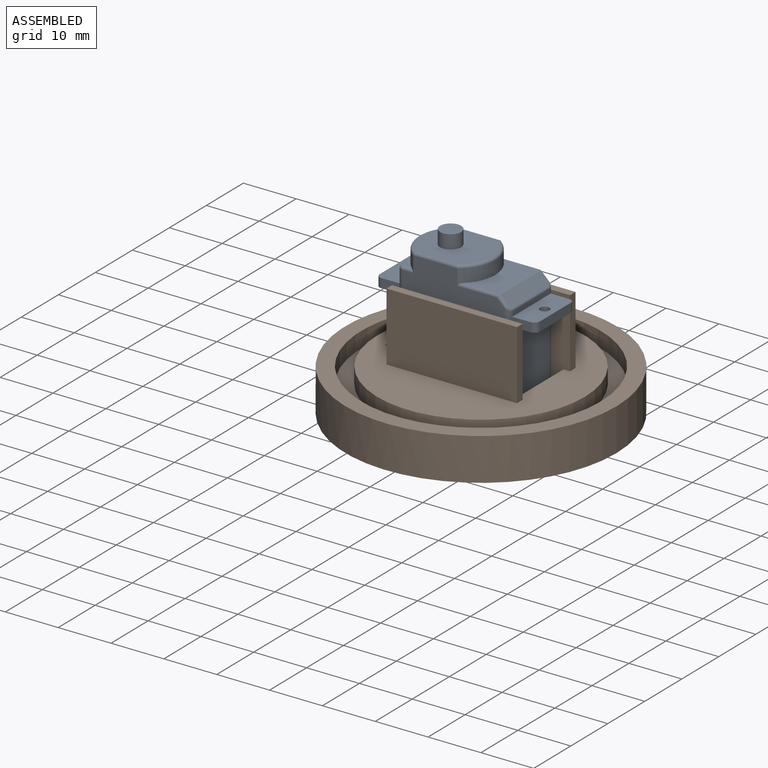
[diagram: assembled view]
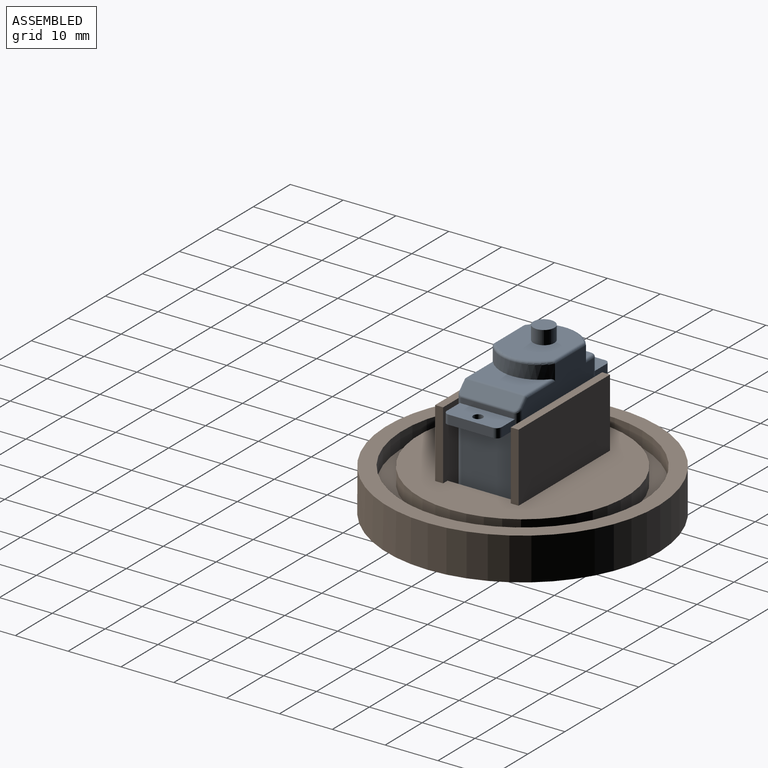
[diagram: assembled view, second angle]
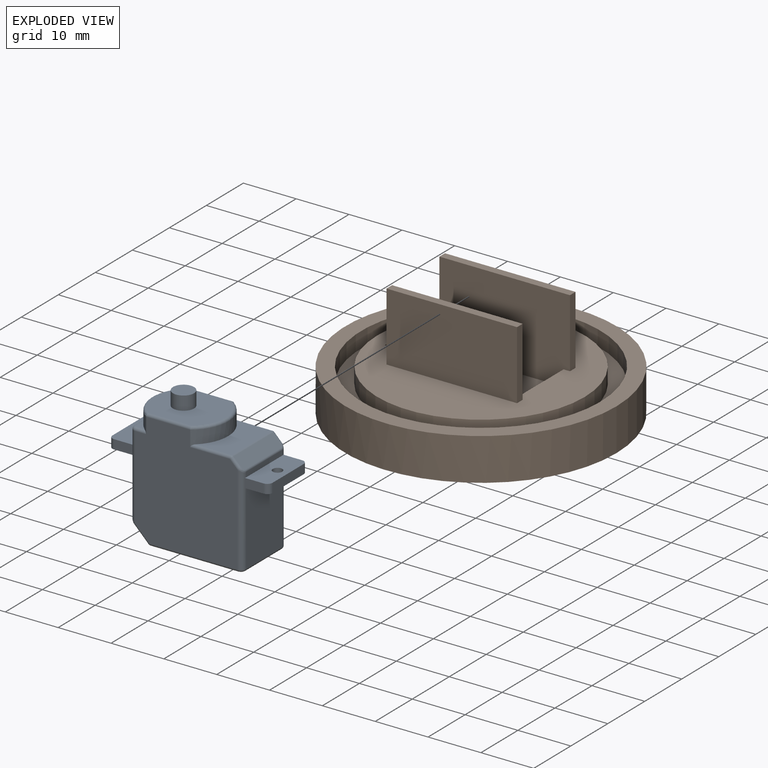
[diagram: exploded view]
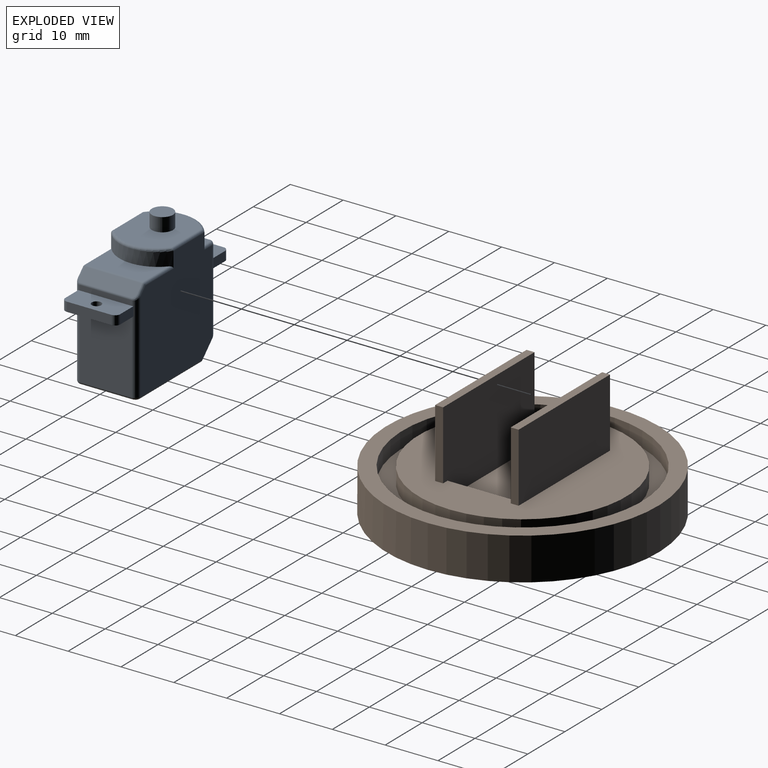
[diagram: exploded view, second angle]
ASSEMBLY  parts=2 mates=2
PART A: 72 faces, bbox 30.4x12.8x25.2 mm
  f0: plane 9.8x0.94mm, normal (-1,0,0), area 9.2mm2, adj f19,f35,f36,f43
  f1: plane 9.88x3.43mm, normal (1,0,0), area 28.9mm2, adj f25,f33,f34,f60,f61,f64,f65
  f2: plane 10.69x9.8mm, normal (1,0,0), area 104.8mm2, adj f23,f33,f34,f56
  f3: plane 13.9x9.8mm, normal (-1,0,0), area 136.2mm2, adj f17,f35,f36,f49
  f4: plane 21.5x19.3mm, normal (0,1,0), area 377.5mm2, adj f12,f13,f34,f35,f37,f38,f48,f50
  f5: plane 13.46x10.8mm, normal (0,0,1), area 115.2mm2, adj f15,f68,f69,f70,f71
  f6: plane 21.5x19.3mm, normal (0,-1,0), area 377.5mm2, adj f12,f13,f33,f36,f42,f46,f55,f59
  f7: plane 17.09x10.8mm, normal (0,0,-1), area 184.5mm2, adj f47,f48,f49,f52,f54,f55
  f8: plane 10.8x6.85mm, normal (0,0,1), area 55.9mm2, adj f13,f37,f41,f42
  f9: plane 10.8x3.21mm, normal (0.71,0,-0.71), area 48.8mm2, adj f50,f53,f54,f56,f58,f59
  f10: plane 10.8x1.91mm, normal (-0.71,0,0.71), area 29mm2, adj f38,f40,f41,f43,f45,f46
  f11: plane 2.76x1.92mm, normal (0,0,1), area 2.2mm2, adj f12,f61,f62,f63
  f12: cylinder r=7.23mm len=11.8mm, axis (0,0,1), area 34.9mm2, adj f4,f6,f11,f14,f60,f63,f64,f67
  f13: cylinder r=7.23mm len=11.8mm, axis (0,0,1), area 34.9mm2, adj f4,f6,f8,f37,f42,f68
  f14: plane 2.76x1.92mm, normal (0,0,1), area 2.2mm2, adj f12,f65,f66,f67
  f15: cylinder r=2mm len=4mm, axis (0,0,-1), area 32.7mm2, adj f5,f16
  f16: plane 4x4mm, normal (0,0,1), area 12.6mm2, adj f15
  f17: plane 10.4x4.55mm, normal (0,0,-1), area 43.8mm2, adj f3,f18,f20,f21,f22,f31,f32,f35
  f18: plane 3.55x1.75mm, normal (0,-1,0), area 6.2mm2, adj f17,f19,f31,f36
  f19: plane 10.4x4.55mm, normal (0,0,1), area 43.8mm2, adj f0,f18,f20,f21,f22,f31,f32,f35
  f20: plane 3.55x1.75mm, normal (0,1,0), area 6.2mm2, adj f17,f19,f32,f35
  f21: plane 8.4x1.75mm, normal (-1,0,0), area 14.7mm2, adj f17,f19,f31,f32
  f22: cylinder r=0.9mm len=1.8mm, axis (0,0,1), area 9.9mm2, adj f17,f19
  f23: plane 10.4x4.55mm, normal (0,0,-1), area 43.8mm2, adj f2,f24,f26,f27,f28,f29,f30,f33
  f24: plane 3.55x1.75mm, normal (0,1,0), area 6.2mm2, adj f23,f25,f30,f34
  f25: plane 10.4x4.55mm, normal (0,0,1), area 43.8mm2, adj f1,f24,f26,f27,f28,f29,f30,f33
  f26: plane 3.55x1.75mm, normal (0,-1,0), area 6.2mm2, adj f23,f25,f29,f33
  f27: plane 8.4x1.75mm, normal (1,0,0), area 14.7mm2, adj f23,f25,f29,f30
  f28: cylinder r=0.9mm len=1.8mm, axis (0,0,1), area 9.9mm2, adj f23,f25
  f29: cylinder r=1mm len=1.75mm, axis (0,0,1), area 2.7mm2, adj f23,f25,f26,f27
  f30: cylinder r=1mm len=1.75mm, axis (0,0,-1), area 2.7mm2, adj f23,f24,f25,f27
  f31: cylinder r=1mm len=1.75mm, axis (0,0,-1), area 2.7mm2, adj f17,f18,f19,f21
  f32: cylinder r=1mm len=1.75mm, axis (0,0,1), area 2.7mm2, adj f17,f19,f20,f21
  f33: cylinder r=1mm len=15.79mm, axis (0,0,-1), area 23.9mm2, adj f1,f2,f6,f23,f25,f26,f58,f62
  f34: cylinder r=1mm len=15.79mm, axis (0,0,1), area 23.9mm2, adj f1,f2,f4,f23,f24,f25,f53,f66
  f35: cylinder r=1mm len=17.09mm, axis (0,0,-1), area 25.9mm2, adj f0,f3,f4,f17,f19,f20,f40,f47
  f36: cylinder r=1mm len=17.09mm, axis (0,0,1), area 25.9mm2, adj f0,f3,f6,f17,f18,f19,f45,f52
  f37: cylinder r=0.5mm len=7.48mm, axis (-1,0,0), area 5.6mm2, adj f4,f8,f13,f39
  f38: cylinder r=0.5mm len=1.76mm, axis (-0.71,0,-0.71), area 1.6mm2, adj f4,f10,f39,f40
  f39: sphere r=0.5mm, area 0.2mm2, adj f37,f38,f41
  f40: bspline ~1.07x1mm, area 0.7mm2, adj f10,f35,f38,f43
  f41: cylinder r=0.5mm len=10.8mm, axis (0,1,0), area 4.2mm2, adj f8,f10,f39,f44
  f42: cylinder r=0.5mm len=7.48mm, axis (1,0,0), area 5.6mm2, adj f6,f8,f13,f44
  f43: cylinder r=0.5mm len=9.8mm, axis (0,1,0), area 3.8mm2, adj f0,f10,f40,f45
  f44: sphere r=0.5mm, area 0.2mm2, adj f41,f42,f46
  f45: bspline ~1x1mm, area 0.7mm2, adj f10,f36,f43,f46
  f46: cylinder r=0.5mm len=1.76mm, axis (-0.71,0,-0.71), area 1.6mm2, adj f6,f10,f44,f45
  f47: torus R=0.5mm, axis (0,0,-1), area 1mm2, adj f7,f35,f48,f49
  f48: cylinder r=0.5mm len=16.59mm, axis (1,0,0), area 13mm2, adj f4,f7,f47,f51
  f49: cylinder r=0.5mm len=9.8mm, axis (0,1,0), area 7.7mm2, adj f3,f7,f47,f52
  f50: cylinder r=0.5mm len=3.06mm, axis (0.71,0,0.71), area 3mm2, adj f4,f9,f51,f53
  f51: sphere r=0.5mm, area 0.2mm2, adj f48,f50,f54
  f52: torus R=0.5mm, axis (0,0,-1), area 1mm2, adj f7,f36,f49,f55
  f53: bspline ~1.07x1mm, area 0.7mm2, adj f9,f34,f50,f56
  f54: cylinder r=0.5mm len=10.8mm, axis (0,-1,0), area 4.2mm2, adj f7,f9,f51,f57
  f55: cylinder r=0.5mm len=16.59mm, axis (-1,0,0), area 13mm2, adj f6,f7,f52,f57
  f56: cylinder r=0.5mm len=9.8mm, axis (0,-1,0), area 3.8mm2, adj f2,f9,f53,f58
  f57: sphere r=0.5mm, area 0.2mm2, adj f54,f55,f59
  f58: bspline ~1x1mm, area 0.7mm2, adj f9,f33,f56,f59
  f59: cylinder r=0.5mm len=3.06mm, axis (0.71,0,0.71), area 3mm2, adj f6,f9,f57,f58
  f60: bspline ~2.81x0.56mm, area 0.7mm2, adj f1,f12,f61
  f61: cylinder r=0.5mm len=2.26mm, axis (0,1,0), area 1.8mm2, adj f1,f11,f60,f62
  f62: torus R=0.5mm, axis (0,0,-1), area 1mm2, adj f11,f33,f61,f63
  f63: cylinder r=0.5mm len=2.05mm, axis (1,0,0), area 1.4mm2, adj f6,f11,f12,f62
  f64: bspline ~2.81x0.56mm, area 0.7mm2, adj f1,f12,f65
  f65: cylinder r=0.5mm len=2.26mm, axis (0,1,0), area 1.8mm2, adj f1,f14,f64,f66
  f66: torus R=0.5mm, axis (0,0,-1), area 1mm2, adj f14,f34,f65,f67
  f67: cylinder r=0.5mm len=2.05mm, axis (-1,0,0), area 1.4mm2, adj f4,f12,f14,f66
  f68: torus R=6.73mm, axis (0,0,1), area 10.4mm2, adj f5,f13,f69,f70
  f69: cylinder r=0.5mm len=8.36mm, axis (-1,0,0), area 6.4mm2, adj f5,f6,f68,f71
  f70: cylinder r=0.5mm len=8.36mm, axis (1,0,0), area 6.4mm2, adj f4,f5,f68,f71
  f71: torus R=6.73mm, axis (0,0,1), area 10.4mm2, adj f5,f12,f69,f70
PART B: 25 faces, bbox 51.3x51.3x21 mm
  f0: plane 6x4.5mm, normal (1,0,0), area 27mm2, adj f2,f21,f23,f24
  f1: cylinder r=25.65mm len=51.3mm, axis (0,0,-1), area 1280.3mm2, adj f3,f4,f21,f23,f24
  f2: plane 39.3x39.3mm, normal (0,0,1), area 840mm2, adj f0,f5,f8,f9,f10,f11,f13,f14
  f3: plane 51.3x51.2mm, normal (0,0,-1), area 2013.1mm2, adj f1,f21,f22,f23
  f4: plane 51.3x51.3mm, normal (0,0,1), area 455.2mm2, adj f1,f6
  f5: cylinder r=19.65mm len=39.3mm, axis (0,0,1), area 370.4mm2, adj f2,f7
  f6: cylinder r=22.65mm len=45.3mm, axis (0,0,1), area 426.9mm2, adj f4,f7
  f7: plane 45.3x45.3mm, normal (0,0,1), area 398.7mm2, adj f5,f6
  f8: plane 12.8x3mm, normal (-1,0,0), area 38.4mm2, adj f2,f9,f11,f12
  f9: plane 24.7x16mm, normal (0,-1,0), area 388mm2, adj f2,f8,f10,f12,f13,f15,f16
  f10: plane 12.8x3mm, normal (1,0,0), area 38.4mm2, adj f2,f9,f11,f12
  f11: plane 24.7x16mm, normal (0,1,0), area 388mm2, adj f2,f8,f10,f12,f17,f19,f20
  f12: plane 22.3x12.8mm, normal (0,0,1), area 285.4mm2, adj f8,f9,f10,f11
  f13: plane 13x1.5mm, normal (1,0,0), area 19.5mm2, adj f2,f9,f14,f16
  f14: plane 24.7x13mm, normal (0,1,0), area 321.1mm2, adj f2,f13,f15,f16
  f15: plane 13x1.5mm, normal (-1,0,0), area 19.5mm2, adj f2,f9,f14,f16
  f16: plane 24.7x1.5mm, normal (0,0,1), area 37.1mm2, adj f9,f13,f14,f15
  f17: plane 13x1.5mm, normal (-1,0,0), area 19.5mm2, adj f2,f11,f18,f20
  f18: plane 24.7x13mm, normal (0,-1,0), area 321.1mm2, adj f2,f17,f19,f20
  f19: plane 13x1.5mm, normal (1,0,0), area 19.5mm2, adj f2,f11,f18,f20
  f20: plane 24.7x1.5mm, normal (0,0,1), area 37.1mm2, adj f11,f17,f18,f19
  f21: plane 11.9x8mm, normal (0,1,0), area 41.8mm2, adj f0,f1,f2,f3,f22,f24
  f22: plane 8x4.5mm, normal (-1,0,0), area 36mm2, adj f2,f3,f21,f23
  f23: plane 11.9x8mm, normal (0,-1,0), area 41.8mm2, adj f0,f1,f2,f3,f22,f24
  f24: plane 9x4.5mm, normal (0,0,-1), area 40.4mm2, adj f0,f1,f21,f23
PLACE A rot(axis=(0,0,1),180deg) t=(-1.1,0,14.6)mm
PLACE B at identity fixed
MATE parallel A.f4 <-> B.f11  axis (0,-1,0) through (-1.27,-5.9,15.37)mm
MATE parallel B.f5 <-> A.f7  axis (0,0,1) through (0,0,5)mm
